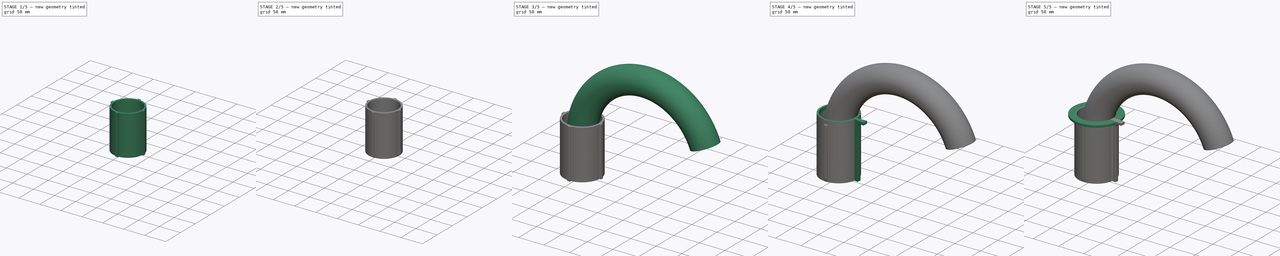
[diagram: build sequence overview — one tinted view per stage of 5, left to right]
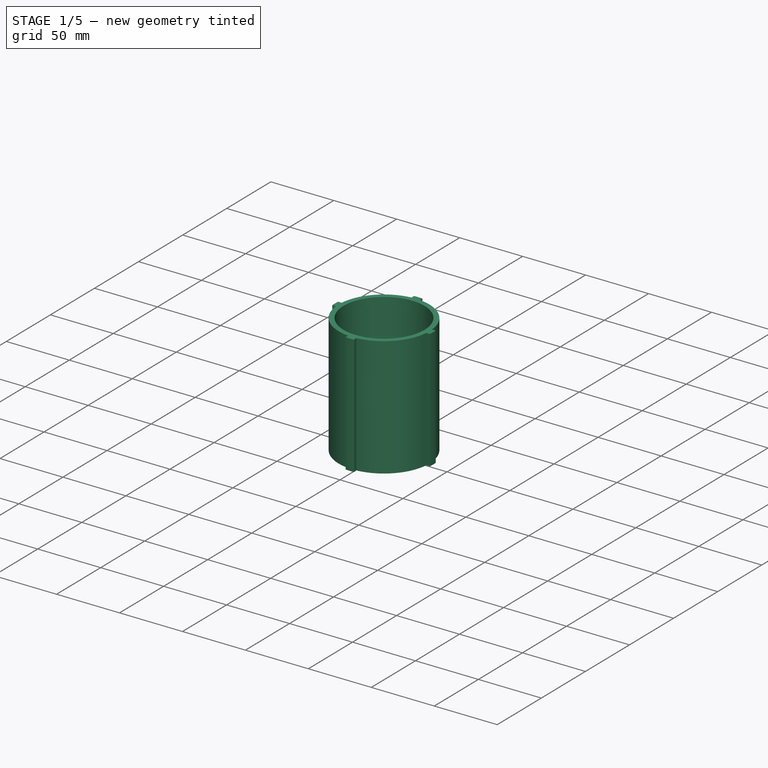
[diagram: stage 1 of 5 — iso view after this stage's code; geometry added in this stage tinted green]
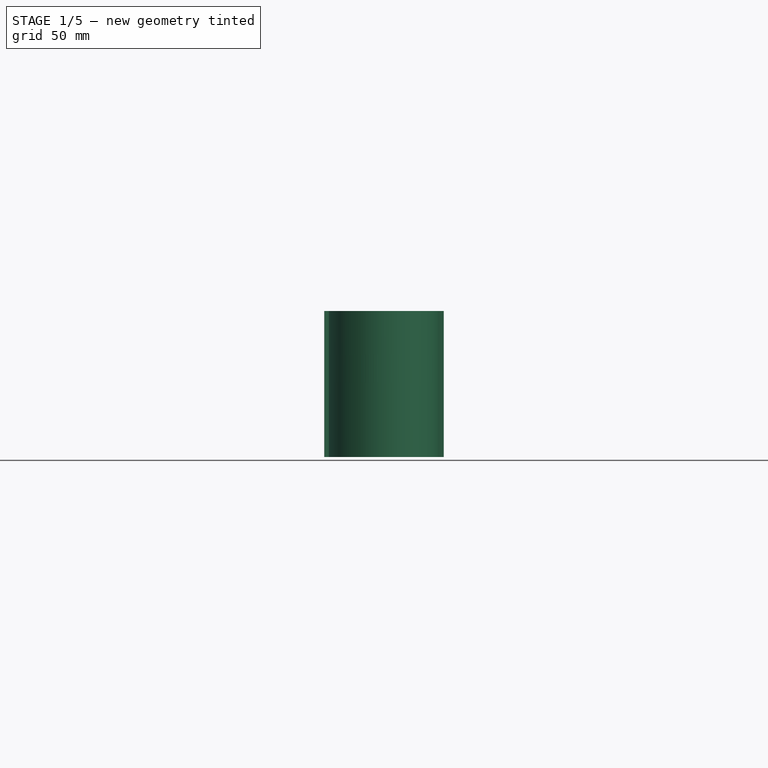
[diagram: stage 1 of 5 — front view after this stage's code; geometry added in this stage tinted green]
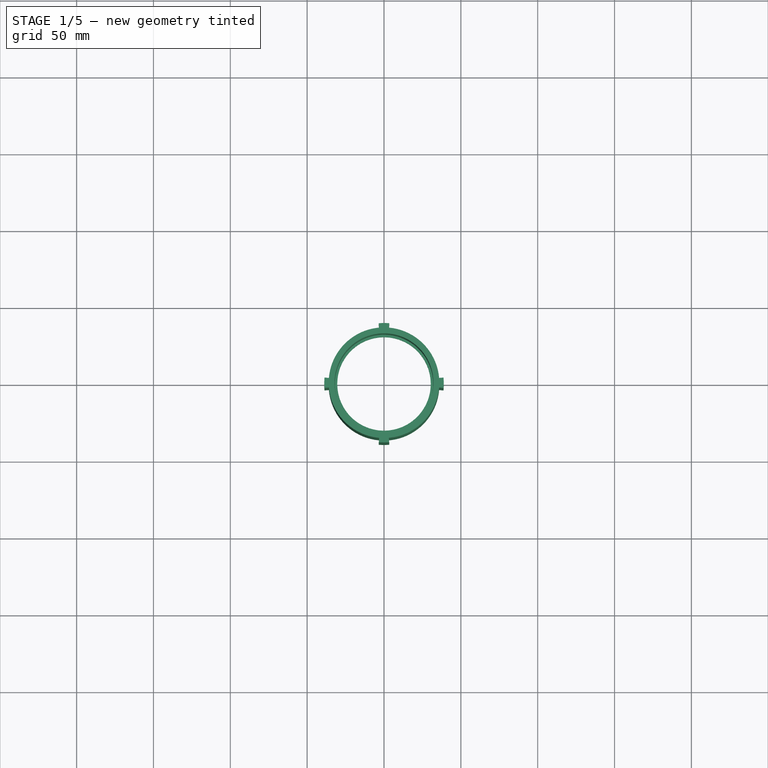
[diagram: stage 1 of 5 — top view after this stage's code; geometry added in this stage tinted green]
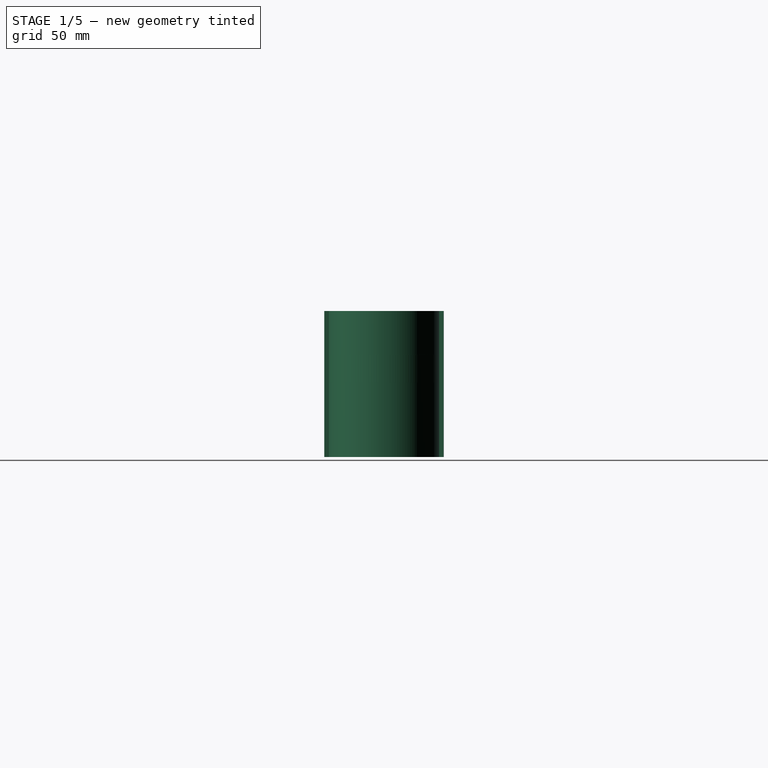
[diagram: stage 1 of 5 — right view after this stage's code; geometry added in this stage tinted green]
FCSTD DOCUMENT  (FreeCAD 1.0R39319 (Git))
Label: gutter-cleaner
License: All rights reserved
LicenseURL: http://en.wikipedia.org/wiki/All_rights_reserved
objects: PartDesign::Fillet×13, Sketcher::SketchObject×11, PartDesign::Revolution×7, PartDesign::Body×4, PartDesign::PolarPattern×2, PartDesign::Plane×2, App::VarSet×1, PartDesign::Pad×1, PartDesign::AdditivePipe×1
note: 98 computed .brp shape members not serialized (recipe doc carries the construction recipe); baked Part::Feature solids carry a one-line shape summary decoded from their .brp

FEATURE [Sketcher::SketchObject] Sketch
  ArcFitTolerance = 1e-06
  AttachmentSupport = -> [XZ_Plane]
  FullyConstrained = true
  MakeInternals = false
  MapMode = 5
  Placement = pos=(0,0,0) rot=(1,0,0;1.5708rad)
  expr: Constraints[16] = <<VarSet>>.coupler_sleeve_height
  expr: Constraints[18] = <<VarSet>>.coupler_wall_thickness
  expr: Constraints[19] = <<VarSet>>.pc_tube_wall_thickness
  expr: Constraints[20] = <<VarSet>>.coupler_id_max / 2
  expr: Constraints[21] = <<VarSet>>.coupler_id_min / 2
  sketch-geometry (8):
    g0: LineSegment StartX=36 StartY=47.5 StartZ=0 EndX=36 EndY=-47.5 EndZ=0
    g1: LineSegment StartX=36 StartY=-47.5 StartZ=0 EndX=32.15 EndY=-47.5 EndZ=0
    g2: LineSegment StartX=32.15 StartY=-47.5 StartZ=0 EndX=32 EndY=-2.5 EndZ=0
    g3: LineSegment StartX=32 StartY=-2.5 StartZ=0 EndX=30.3998 EndY=-2.5 EndZ=0
    g4: LineSegment StartX=30.3998 StartY=-2.5 StartZ=0 EndX=30.3998 EndY=2.5 EndZ=0
    g5: LineSegment StartX=30.3998 StartY=2.5 StartZ=0 EndX=32 EndY=2.5 EndZ=0
    g6: LineSegment StartX=32 StartY=2.5 StartZ=0 EndX=32.15 EndY=47.5 EndZ=0
    g7: LineSegment StartX=32.15 StartY=47.5 StartZ=0 EndX=36 EndY=47.5 EndZ=0
  constraints (22):
    c: Vertical(g0)
    c: Coincident(g0,g1)
    c: Horizontal(g1)
    c: Coincident(g1,g2)
    c: Coincident(g2,g3)
    c: Horizontal(g3)
    c: Coincident(g3,g4)
    c: Vertical(g4)
    c: Coincident(g4,g5)
    c: Horizontal(g5)
    c: Coincident(g5,g6)
    c: Coincident(g6,g7)
    c: Coincident(g7,g0)
    c: Horizontal(g7)
    c: Symmetric(g5,g2,g-1)
    c: Symmetric(g6,g1,g-1)
    c: DistanceY(g6,g6) = 45
    c: DistanceY(g4,g4) = 5
    c: Distance(g5,g0) = 4
    c: DistanceX(g4,g5) = 1.6002
    c: DistanceX(g-2,g6) = 32.15
    c: DistanceX(g-1,g5) = 32
FEATURE [App::VarSet] VarSet
  coupler_id_max = 64.3
  coupler_id_min = 64
  coupler_sleeve_height = 45
  coupler_wall_thickness = 4
  nozzle_id = 45
  nozzle_wall_thickness = 3
  pc_tube_fit_max = 0.8
  pc_tube_fit_min = 0.5
  pc_tube_od = 63.5
  pc_tube_wall_thickness = 1.6002
  shop_vac_socket_diameter = 45
  expr: coupler_id_max = pc_tube_od + pc_tube_fit_max
  expr: coupler_id_min = pc_tube_od + pc_tube_fit_min
FEATURE [PartDesign::Revolution] Revolution
  Angle = 360
  Angle2 = 60
  Axis = (0,2e-16,1)
  Base = (0,0,0)
  Placement = pos=(0,0,0) rot=(1,0,0;1.5708rad)
  Profile = -> Sketch
  ReferenceAxis = -> Sketch [V_Axis]
  Refine = true
  Reversed = true
  Suppressed = false
  Type = 0
FEATURE [PartDesign::Body] Body001  label="shop-vac-adapter"
  AllowCompound = false
  Group = -> [Sketch001,Revolution001,Sketch002,Revolution002,Sketch003,Revolution003,Fillet002,Fillet003,Fillet004,Fillet005]
  Origin = -> Origin001
  Tip = -> Fillet005
FEATURE [Sketcher::SketchObject] Sketch004
  ArcFitTolerance = 1e-06
  AttachmentOffset = pos=(0,0,0) rot=(0,1,0;0.087266rad)
  AttachmentSupport = -> [XZ_Plane]
  ExternalGeometry = -> [Sketch]
  FullyConstrained = true
  MakeInternals = false
  MapMode = 5
  Placement = pos=(0,0,0) rot=(0.998099,0.043578,0.043578;1.5727rad)
  sketch-geometry (4):
    g0: LineSegment StartX=35.863 StartY=47.5 StartZ=0 EndX=38.863 EndY=47.5 EndZ=0
    g1: LineSegment StartX=38.863 StartY=47.5 StartZ=0 EndX=38.863 EndY=-47.5 EndZ=0
    g2: LineSegment StartX=38.863 StartY=-47.5 StartZ=0 EndX=35.863 EndY=-47.5 EndZ=0
    g3: LineSegment StartX=35.863 StartY=-47.5 StartZ=0 EndX=35.863 EndY=47.5 EndZ=0
  constraints (10):
    c: Coincident(g-3,g0)
    c: Coincident(g0,g1)
    c: Vertical(g1)
    c: Coincident(g1,g2)
    c: Coincident(g2,g-3)
    c: Horizontal(g2)
    c: Coincident(g2,g3)
    c: Coincident(g3,g0)
    c: Horizontal(g0)
    c: DistanceX(g0,g0) = 3
FEATURE [PartDesign::Revolution] Revolution004
  Angle = 10
  Angle2 = 60
  Axis = (0,2e-16,1)
  Base = (0,0,0)
  BaseFeature = -> Revolution
  Placement = pos=(0,0,0) rot=(1,0,0;1.5708rad)
  Profile = -> Sketch004
  ReferenceAxis = -> Sketch004 [V_Axis]
  Refine = true
  Reversed = true
  Suppressed = false
  Type = 0
FEATURE [PartDesign::PolarPattern] PolarPattern
  Angle = 360
  Axis = -> Z_Axis
  BaseFeature = -> Revolution004
  Mode = 0
  Occurrences = 4
  Offset = 120
  Originals = -> [Revolution004]
  Placement = pos=(0,0,0) rot=(1,0,0;1.5708rad)
  Refine = true
  Suppressed = false
  TransformMode = 0
FEATURE [Sketcher::SketchObject] Sketch005
  ArcFitTolerance = 1e-06
  AttachmentSupport = -> [XY_Plane002]
  FullyConstrained = true
  MakeInternals = false
  MapMode = 5
  expr: .Constraints.inner_radius = <<VarSet>>.coupler_id_min / 2
  expr: Constraints[3] = .Constraints.inner_radius + <<VarSet>>.coupler_wall_thickness
  sketch-geometry (2):
    g0: Circle CenterX=0 CenterY=0 CenterZ=0 NormalX=0 NormalY=0 NormalZ=1 AngleXU=0 Radius=32
    g1: Circle CenterX=0 CenterY=0 CenterZ=0 NormalX=0 NormalY=0 NormalZ=1 AngleXU=0 Radius=36
  constraints (4):
    c: Coincident(g0,g-1)
    c: Radius(g0) = 32  'inner_radius'
    c: Coincident(g1,g0)
    c: Radius(g1) = 36
FEATURE [PartDesign::Pad] Pad
  Direction = (0,0,1)
  Length = 20
  Length2 = 10
  Profile = -> Sketch005
  ReferenceAxis = -> Sketch005 [N_Axis]
  Refine = true
  Suppressed = false
  Type = 0
FEATURE [PartDesign::Body] Body  label="coupler"
  AllowCompound = false
  Group = -> [Sketch,Revolution,Sketch004,Revolution004,PolarPattern,Fillet,Fillet014,Fillet015,Fillet016]
  Origin = -> Origin
  Tip = -> Fillet016
FEATURE [PartDesign::Fillet] Fillet017
  Base = -> Pad [Edge3,Edge6,Edge2,Edge5]
  BaseFeature = -> Pad
  Radius = 1
  Refine = true
  SupportTransform = false
  Suppressed = false
  UseAllEdges = false
FEATURE [PartDesign::Body] Body002  label="fit-check-ring"
  AllowCompound = false
  Group = -> [Sketch005,Pad,Fillet017]
  Origin = -> Origin002
  Tip = -> Fillet017
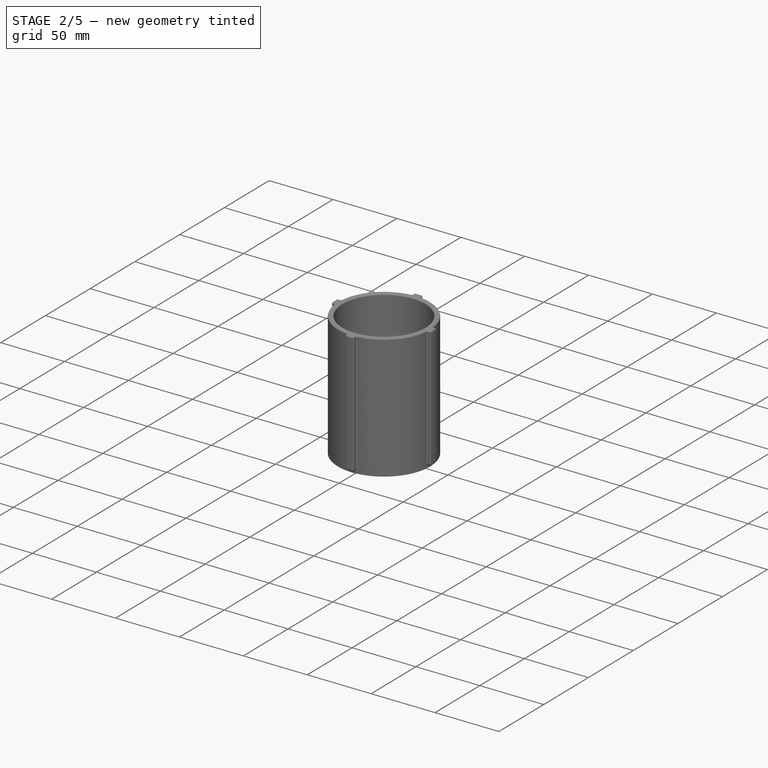
[diagram: stage 2 of 5 — iso view after this stage's code; geometry added in this stage tinted green]
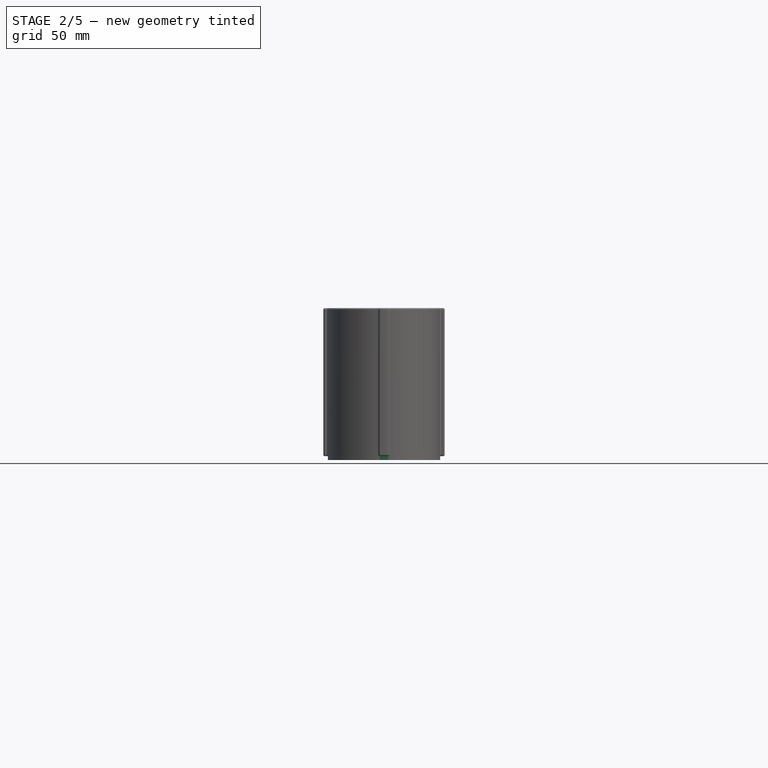
[diagram: stage 2 of 5 — front view after this stage's code; geometry added in this stage tinted green]
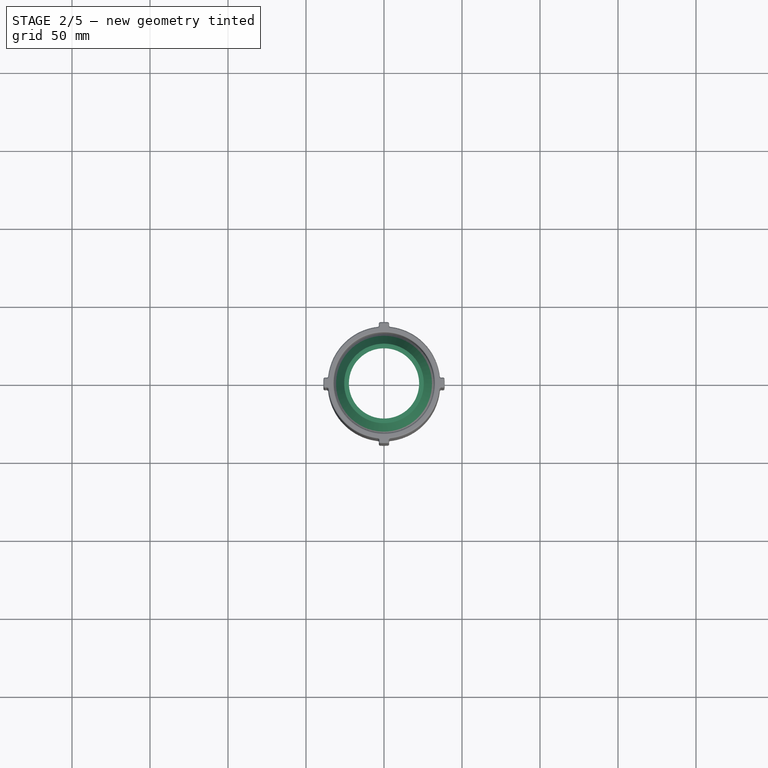
[diagram: stage 2 of 5 — top view after this stage's code; geometry added in this stage tinted green]
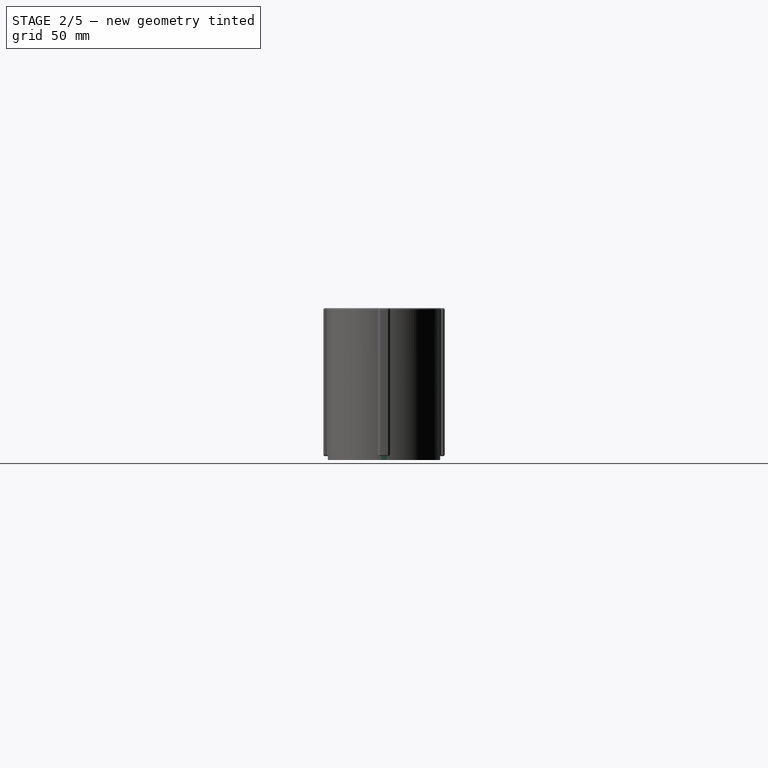
[diagram: stage 2 of 5 — right view after this stage's code; geometry added in this stage tinted green]
FEATURE [Sketcher::SketchObject] Sketch009  label="sketch_nozzle_coupler_profile"
  ArcFitTolerance = 1e-06
  AttachmentSupport = -> [XZ_Plane004]
  FullyConstrained = true
  MakeInternals = false
  MapMode = 5
  Placement = pos=(0,0,0) rot=(1,0,0;1.5708rad)
  expr: Constraints[10] = <<VarSet>>.coupler_sleeve_height
  expr: Constraints[17] = <<VarSet>>.nozzle_wall_thickness
  expr: Constraints[18] = <<VarSet>>.nozzle_id / 2
  expr: Constraints[21] = <<VarSet>>.coupler_wall_thickness
  expr: Constraints[22] = <<VarSet>>.coupler_id_min / 2
  expr: Constraints[23] = <<VarSet>>.coupler_id_max / 2
  expr: Constraints[9] = <<VarSet>>.pc_tube_wall_thickness
  sketch-geometry (8):
    g0: LineSegment StartX=36 StartY=0 StartZ=0 EndX=36 EndY=-50 EndZ=0
    g1: LineSegment StartX=36 StartY=-50 StartZ=0 EndX=32.15 EndY=-50 EndZ=0
    g2: LineSegment StartX=32.15 StartY=-50 StartZ=0 EndX=32 EndY=-5 EndZ=0
    g3: LineSegment StartX=32 StartY=-5 StartZ=0 EndX=30.3998 EndY=-5 EndZ=0
    g4: LineSegment StartX=30.3998 StartY=-5 StartZ=0 EndX=30.3998 EndY=0 EndZ=0
    g5: LineSegment StartX=22.5 StartY=20 StartZ=0 EndX=30.3998 EndY=0 EndZ=0
    g6: LineSegment StartX=22.5 StartY=20 StartZ=0 EndX=25.5 EndY=20 EndZ=0
    g7: LineSegment StartX=25.5 StartY=20 StartZ=0 EndX=36 EndY=0 EndZ=0
  constraints (24):
    c: Vertical(g0)
    c: Coincident(g0,g1)
    c: Horizontal(g1)
    c: Coincident(g1,g2)
    c: Coincident(g2,g3)
    c: Horizontal(g3)
    c: Coincident(g3,g4)
    c: Vertical(g4)
    c: Distance(g4,g4) = 5
    c: Distance(g3,g3) = 1.6002
    c: DistanceY(g2,g2) = 45
    c: PointOnObject(g4,g-1)
    c: Coincident(g5,g4)
    c: Coincident(g6,g5)
    c: Horizontal(g6)
    c: Coincident(g7,g6)
    c: Coincident(g7,g0)
    c: DistanceX(g6,g6) = 3
    c: DistanceX(g-1,g5) = 22.5
    c: DistanceY(g-1,g5) = 20  'taper_distance'
    c: PointOnObject(g0,g-1)
    c: Distance(g2,g0) = 4
    c: DistanceX(g-1,g2) = 32
    c: DistanceX(g-1,g1) = 32.15
FEATURE [PartDesign::Revolution] Revolution005
  Angle = 360
  Angle2 = 60
  Axis = (0,2e-16,1)
  Base = (0,0,0)
  Placement = pos=(0,0,0) rot=(1,0,0;1.5708rad)
  Profile = -> Sketch009
  ReferenceAxis = -> Sketch009 [V_Axis]
  Refine = true
  Reversed = true
  Suppressed = false
  Type = 0
FEATURE [PartDesign::Body] Body004  label="nozzle"
  AllowCompound = false
  Group = -> [Sketch009,Revolution005,Sketch010,Revolution006,PolarPattern001,Sketch011,Sketch012,DatumPlane001,Sketch013,DatumPlane,AdditivePipe,Fillet010,Fillet011,Fillet012,Fillet013]
  Origin = -> Origin004
  Tip = -> Fillet013
FEATURE [PartDesign::Fillet] Fillet  label="coupler-fillet-inner-ring"
  Base = -> PolarPattern [Edge50]
  BaseFeature = -> PolarPattern
  Placement = pos=(0,0,0) rot=(1,0,0;1.5708rad)
  Radius = 1.5002
  Refine = true
  SupportTransform = false
  Suppressed = false
  UseAllEdges = false
  expr: Radius = <<VarSet>>.pc_tube_wall_thickness - 0.1 mm
FEATURE [PartDesign::Fillet] Fillet014  label="coupler-fillet-top-bottom-inner"
  Base = -> Fillet [Edge3,Edge57]
  BaseFeature = -> Fillet
  Placement = pos=(0,0,0) rot=(1,0,0;1.5708rad)
  Radius = 1
  Refine = true
  SupportTransform = false
  Suppressed = false
  UseAllEdges = false
FEATURE [PartDesign::Fillet] Fillet015  label="coupler-fillet-ridges"
  Base = -> Fillet014 [Edge34,Edge33,Edge30,Edge28,Edge25,Edge26,Edge54,Edge52,Edge50,Edge49,Edge46,Edge44,Edge42,Edge41,Edge38,Edge36]
  BaseFeature = -> Fillet014
  Placement = pos=(0,0,0) rot=(1,0,0;1.5708rad)
  Radius = 1
  Refine = true
  SupportTransform = false
  Suppressed = false
  UseAllEdges = false
FEATURE [PartDesign::Fillet] Fillet016  label="coupler-fillet-top-bottom-outer"
  Base = -> Fillet015 [Edge76,Edge21]
  BaseFeature = -> Fillet015
  Placement = pos=(0,0,0) rot=(1,0,0;1.5708rad)
  Radius = 1
  Refine = true
  SupportTransform = false
  Suppressed = false
  UseAllEdges = false
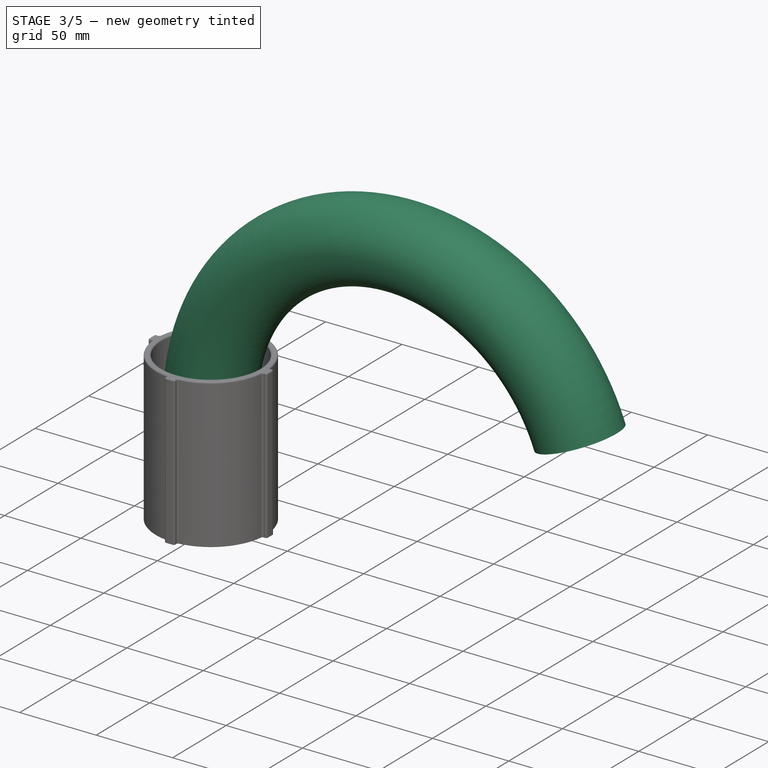
[diagram: stage 3 of 5 — iso view after this stage's code; geometry added in this stage tinted green]
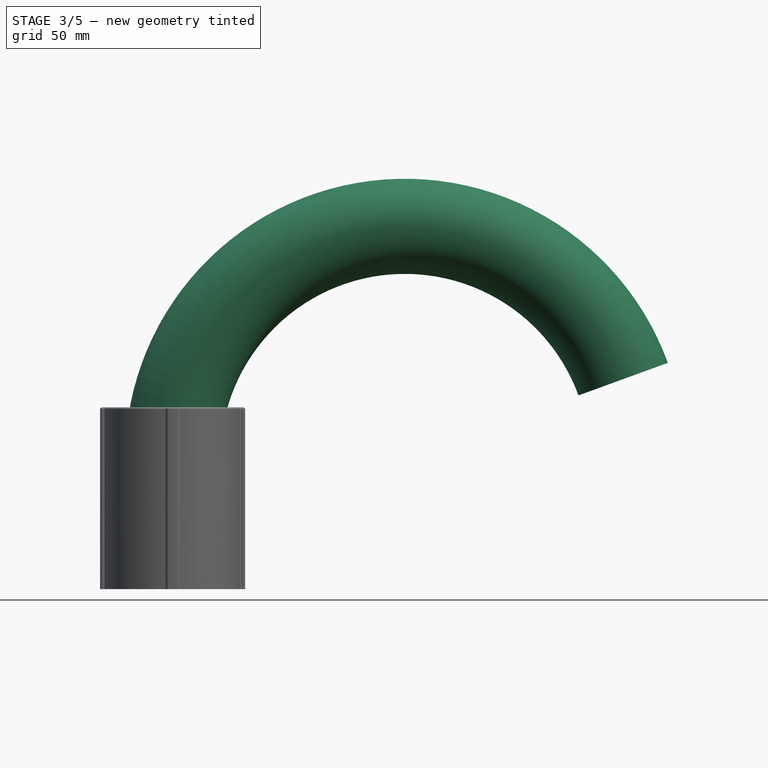
[diagram: stage 3 of 5 — front view after this stage's code; geometry added in this stage tinted green]
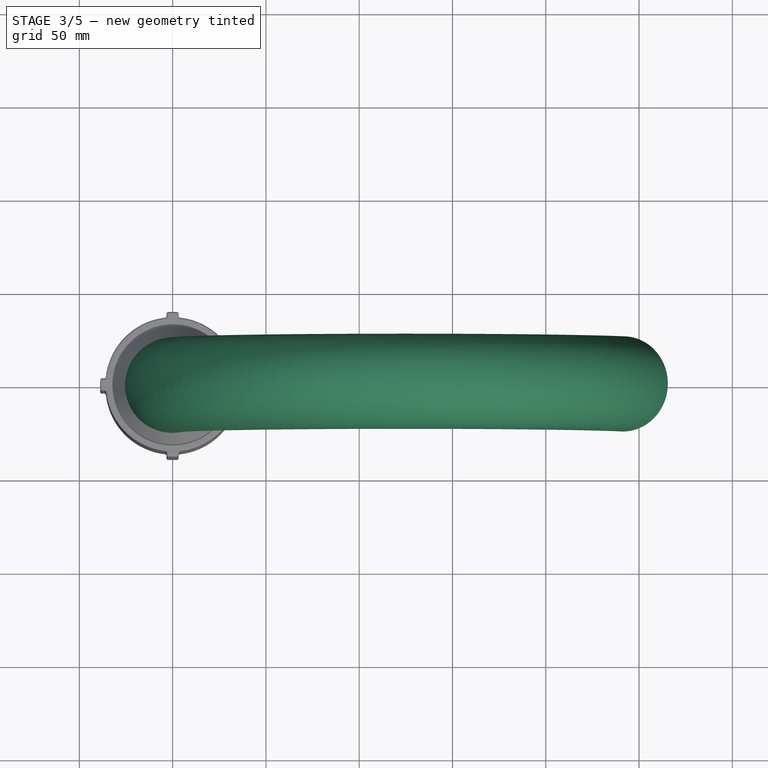
[diagram: stage 3 of 5 — top view after this stage's code; geometry added in this stage tinted green]
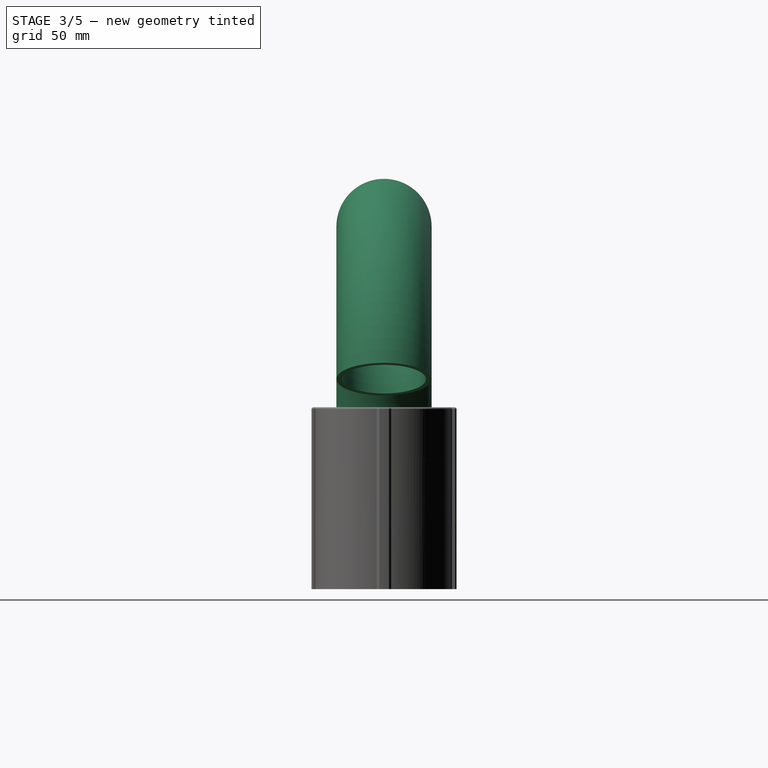
[diagram: stage 3 of 5 — right view after this stage's code; geometry added in this stage tinted green]
FEATURE [Sketcher::SketchObject] Sketch010
  ArcFitTolerance = 1e-06
  AttachmentOffset = pos=(0,0,0) rot=(0,1,0;0.087266rad)
  AttachmentSupport = -> [XZ_Plane004]
  ExternalGeometry = -> [Sketch009]
  FullyConstrained = true
  MakeInternals = false
  MapMode = 5
  Placement = pos=(0,0,0) rot=(0.998099,0.043578,0.043578;1.5727rad)
  sketch-geometry (4):
    g0: LineSegment StartX=35.863 StartY=0 StartZ=0 EndX=38.863 EndY=-3 EndZ=0
    g1: LineSegment StartX=38.863 StartY=-3 StartZ=0 EndX=38.863 EndY=-50 EndZ=0
    g2: LineSegment StartX=38.863 StartY=-50 StartZ=0 EndX=35.863 EndY=-50 EndZ=0
    g3: LineSegment StartX=35.863 StartY=-50 StartZ=0 EndX=35.863 EndY=0 EndZ=0
  constraints (10):
    c: Coincident(g-3,g0)
    c: Coincident(g0,g1)
    c: Vertical(g1)
    c: Coincident(g1,g2)
    c: Coincident(g2,g-3)
    c: Horizontal(g2)
    c: Coincident(g2,g3)
    c: Coincident(g3,g0)
    c: DistanceX(g0,g0) = 3
    c: Angle(g3,g0) = 0.785398
FEATURE [PartDesign::Revolution] Revolution006
  Angle = 10
  Angle2 = 60
  Axis = (0,2e-16,1)
  Base = (0,0,0)
  BaseFeature = -> Revolution005
  Placement = pos=(0,0,0) rot=(1,0,0;1.5708rad)
  Profile = -> Sketch010
  ReferenceAxis = -> Sketch010 [V_Axis]
  Refine = true
  Reversed = true
  Suppressed = false
  Type = 0
FEATURE [PartDesign::PolarPattern] PolarPattern001
  Angle = 360
  Axis = -> Z_Axis004
  BaseFeature = -> Revolution006
  Mode = 0
  Occurrences = 4
  Offset = 120
  Originals = -> [Revolution006]
  Placement = pos=(0,0,0) rot=(1,0,0;1.5708rad)
  Refine = true
  Suppressed = false
  TransformMode = 0
FEATURE [PartDesign::Plane] DatumPlane
  AttachmentOffset = pos=(0,0,20) rot=(0,0,1;0rad)
  AttachmentSupport = -> [XY_Plane004]
  Length = 334.765
  MapMode = 5
  Placement = pos=(0,0,20) rot=(0,0,1;0rad)
  ResizeMode = 0
  Width = 108.451
  expr: .AttachmentOffset.Base.z = <<sketch_nozzle_coupler_profile>>.Constraints.taper_distance
FEATURE [Sketcher::SketchObject] Sketch011  label="sketch_nozzle_base"
  ArcFitTolerance = 1e-06
  AttachmentSupport = -> [DatumPlane]
  ExternalGeometry = -> [Sketch009]
  FullyConstrained = true
  MakeInternals = false
  MapMode = 5
  Placement = pos=(0,0,20) rot=(0,0,1;0rad)
  sketch-geometry (2):
    g0: Circle CenterX=0 CenterY=0 CenterZ=0 NormalX=0 NormalY=0 NormalZ=1 AngleXU=0 Radius=22.5
    g1: Circle CenterX=0 CenterY=0 CenterZ=0 NormalX=0 NormalY=0 NormalZ=1 AngleXU=0 Radius=25.5
  constraints (4):
    c: Coincident(g0,g-1)
    c: Coincident(g1,g0)
    c: PointOnObject(g-3,g0)
    c: PointOnObject(g-3,g1)
FEATURE [Sketcher::SketchObject] Sketch012  label="sketch_nozzle_path"
  ArcFitTolerance = 1e-06
  AttachmentSupport = -> [XZ_Plane004]
  ExternalGeometry = -> [Sketch011]
  FullyConstrained = true
  MakeInternals = false
  MapMode = 5
  Placement = pos=(0,0,0) rot=(1,0,0;1.5708rad)
  sketch-geometry (1):
    g0: ArcOfCircle CenterX=124.5 CenterY=20 CenterZ=0 NormalX=0 NormalY=0 NormalZ=1 AngleXU=0 Radius=150 StartAngle=0.349066 EndAngle=3.14159
  constraints (4):
    c: Coincident(g0,g-3)
    c: Angle(g0) = 2.79253
    c: Diameter(g0) = 300
    c: DistanceY(g0,g0) = 0
FEATURE [PartDesign::Plane] DatumPlane001
  AttachmentSupport = -> [Sketch012]
  Length = 111.205
  MapMode = 7
  Placement = pos=(265.454,1.58e-14,71.303) rot=(0.701674,0.701674,0.123724;2.8954rad)
  ResizeMode = 0
  Width = 394.413
FEATURE [Sketcher::SketchObject] Sketch013  label="sketch_nozzle_tip"
  ArcFitTolerance = 1e-06
  AttachmentSupport = -> [DatumPlane001]
  FullyConstrained = true
  MakeInternals = false
  MapMode = 5
  Placement = pos=(265.454,1.58e-14,71.303) rot=(0.701674,0.701674,0.123724;2.8954rad)
  expr: .Constraints.nozzle_tip_id = <<VarSet>>.nozzle_id
  expr: Constraints[1] = <<VarSet>>.nozzle_id + <<VarSet>>.nozzle_wall_thickness * 2
  sketch-geometry (2):
    g0: Circle CenterX=0 CenterY=-25.5 CenterZ=0 NormalX=0 NormalY=0 NormalZ=1 AngleXU=0 Radius=22.5
    g1: Circle CenterX=0 CenterY=-25.5 CenterZ=0 NormalX=0 NormalY=0 NormalZ=1 AngleXU=0 Radius=25.5
  constraints (5):
    c: Diameter(g0) = 45  'nozzle_tip_id'
    c: Diameter(g1) = 51
    c: PointOnObject(g0,g-2)
    c: Coincident(g1,g0)
    c: PointOnObject(g-1,g1)
FEATURE [PartDesign::AdditivePipe] AdditivePipe
  AuxilleryCurvelinear = true
  AuxillerySpineTangent = false
  BaseFeature = -> PolarPattern001
  Binormal = (0,0,0)
  Mode = 0
  Placement = pos=(0,0,0) rot=(1,0,0;1.5708rad)
  Profile = -> Sketch011
  Refine = true
  Sections = -> [Sketch013]
  Spine = -> Sketch012
  SpineTangent = false
  Suppressed = false
  Transformation = 1
  Transition = 0
FEATURE [PartDesign::Fillet] Fillet010  label="nozzle-fillet-ridges"
  Base = -> AdditivePipe [Edge21,Edge22,Edge53,Edge36,Edge35,Edge51,Edge48,Edge33,Edge32,Edge46,Edge43,Edge30,Edge29,Edge41,Edge38,Edge27]
  BaseFeature = -> AdditivePipe
  Placement = pos=(0,0,0) rot=(1,0,0;1.5708rad)
  Radius = 1
  Refine = true
  SupportTransform = false
  Suppressed = false
  UseAllEdges = false
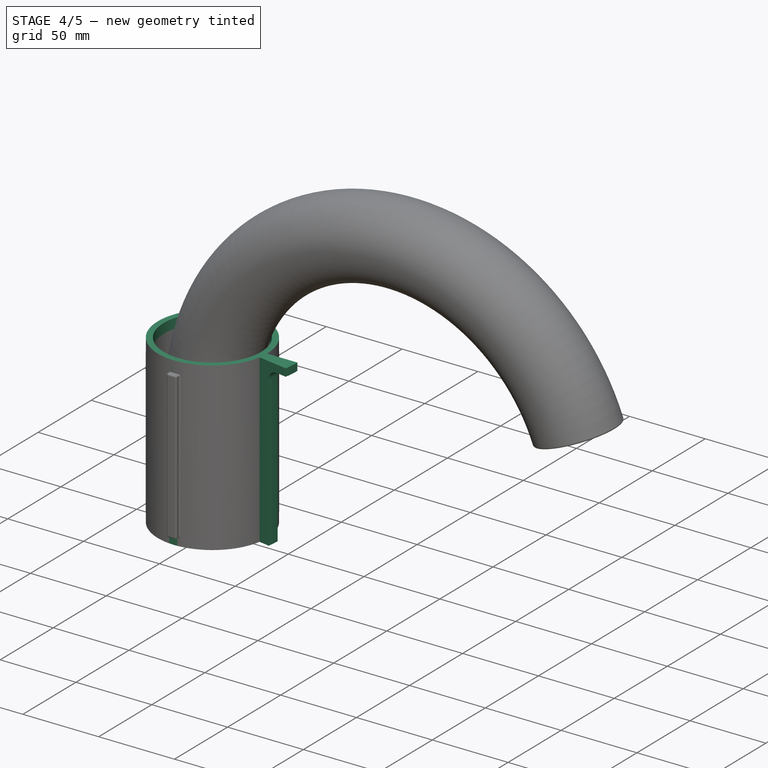
[diagram: stage 4 of 5 — iso view after this stage's code; geometry added in this stage tinted green]
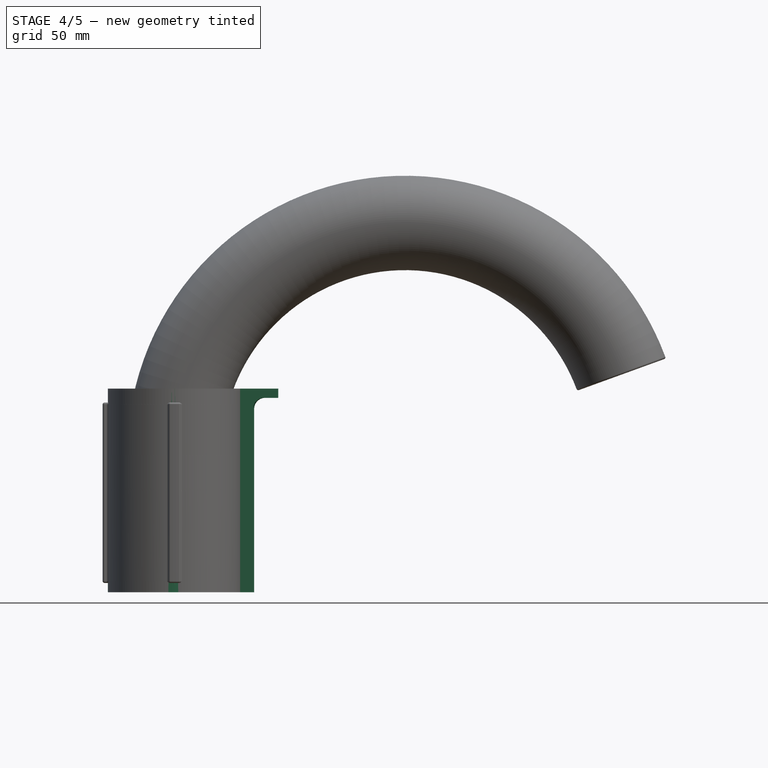
[diagram: stage 4 of 5 — front view after this stage's code; geometry added in this stage tinted green]
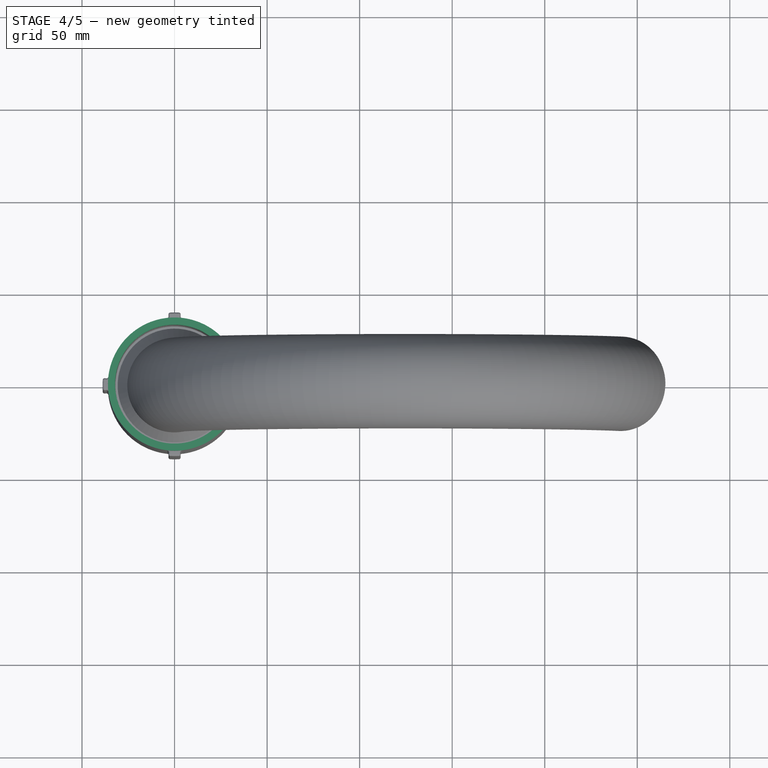
[diagram: stage 4 of 5 — top view after this stage's code; geometry added in this stage tinted green]
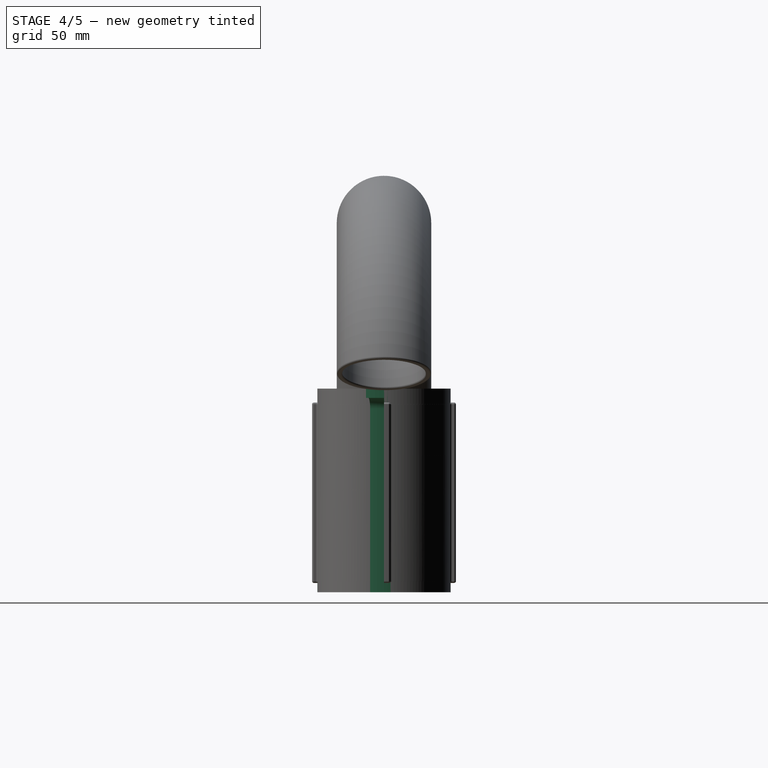
[diagram: stage 4 of 5 — right view after this stage's code; geometry added in this stage tinted green]
FEATURE [Sketcher::SketchObject] Sketch001
  ArcFitTolerance = 1e-06
  AttachmentSupport = -> [XZ_Plane001]
  FullyConstrained = true
  MakeInternals = false
  MapMode = 5
  Placement = pos=(0,0,0) rot=(1,0,0;1.5708rad)
  expr: Constraints[10] = <<VarSet>>.pc_tube_wall_thickness
  expr: Constraints[11] = <<VarSet>>.shop_vac_socket_diameter / 2
  expr: Constraints[15] = <<VarSet>>.coupler_sleeve_height
  expr: Constraints[17] = <<VarSet>>.coupler_id_max / 2
  expr: Constraints[18] = <<VarSet>>.coupler_id_min / 2
  expr: Constraints[19] = <<VarSet>>.coupler_wall_thickness
  expr: Constraints[9] = <<VarSet>>.coupler_sleeve_height
  sketch-geometry (7):
    g0: LineSegment StartX=32.15 StartY=55 StartZ=0 EndX=32 EndY=10 EndZ=0
    g1: LineSegment StartX=32 StartY=10 StartZ=0 EndX=30.3998 EndY=10 EndZ=0
    g2: LineSegment StartX=22.5 StartY=-10 StartZ=0 EndX=22.5 EndY=-55 EndZ=0
    g3: LineSegment StartX=22.5 StartY=-55 StartZ=0 EndX=36 EndY=-55 EndZ=0
    g4: LineSegment StartX=36 StartY=-55 StartZ=0 EndX=36 EndY=55 EndZ=0
    g5: LineSegment StartX=36 StartY=55 StartZ=0 EndX=32.15 EndY=55 EndZ=0
    g6: LineSegment StartX=22.5 StartY=-10 StartZ=0 EndX=30.3998 EndY=10 EndZ=0
  constraints (20):
    c: Coincident(g0,g1)
    c: Vertical(g2)
    c: Coincident(g2,g3)
    c: Coincident(g3,g4)
    c: Coincident(g4,g5)
    c: Coincident(g5,g0)
    c: Horizontal(g5)
    c: Horizontal(g3)
    c: Horizontal(g1)
    c: DistanceY(g0,g0) = 45
    c: DistanceX(g1,g1) = 1.6002
    c: DistanceX(g-1,g2) = 22.5
    c: Coincident(g6,g2)
    c: Coincident(g6,g1)
    c: Symmetric(g4,g3,g-1)
    c: DistanceY(g2,g2) = 45
    c: DistanceY(g2,g1) = 20
    c: DistanceX(g-1,g0) = 32.15
    c: DistanceX(g-1,g0) = 32
    c: Distance(g0,g4) = 4
FEATURE [PartDesign::Revolution] Revolution001
  Angle = 360
  Angle2 = 60
  Axis = (0,2e-16,1)
  Base = (0,0,0)
  Placement = pos=(0,0,0) rot=(1,0,0;1.5708rad)
  Profile = -> Sketch001
  ReferenceAxis = -> Sketch001 [V_Axis]
  Refine = true
  Reversed = true
  Suppressed = false
  Type = 0
FEATURE [Sketcher::SketchObject] Sketch002
  ArcFitTolerance = 1e-06
  AttachmentSupport = -> [XZ_Plane001]
  ExternalGeometry = -> [Sketch001]
  FullyConstrained = true
  MakeInternals = false
  MapMode = 5
  Placement = pos=(0,0,0) rot=(1,0,0;1.5708rad)
  sketch-geometry (7):
    g0: LineSegment StartX=36 StartY=55 StartZ=0 EndX=56 EndY=55 EndZ=0
    g1: LineSegment StartX=56 StartY=55 StartZ=0 EndX=56 EndY=50 EndZ=0
    g2: LineSegment StartX=56 StartY=50 StartZ=0 EndX=49 EndY=50 EndZ=0
    g3: ArcOfCircle CenterX=49 CenterY=44 CenterZ=0 NormalX=0 NormalY=0 NormalZ=1 AngleXU=0 Radius=6 StartAngle=1.5708 EndAngle=3.14159
    g4: LineSegment StartX=43 StartY=44 StartZ=0 EndX=43 EndY=-55 EndZ=0
    g5: LineSegment StartX=43 StartY=-55 StartZ=0 EndX=36 EndY=-55 EndZ=0
    g6: LineSegment StartX=36 StartY=-55 StartZ=0 EndX=36 EndY=55 EndZ=0
  constraints (18):
    c: Coincident(g-3,g0)
    c: Horizontal(g0)
    c: Coincident(g0,g1)
    c: Vertical(g1)
    c: Coincident(g1,g2)
    c: Horizontal(g2)
    c: Tangent(g2,g3) = -1.5708
    c: Vertical(g4)
    c: Coincident(g5,g-3)
    c: Horizontal(g5)
    c: Coincident(g5,g6)
    c: Coincident(g6,g0)
    c: Tangent(g3,g4) = -1.5708
    c: Coincident(g5,g4)
    c: DistanceY(g1,g1) = 5
    c: DistanceX(g0,g0) = 20
    c: Radius(g3) = 6
    c: Distance(g5,g5) = 7
FEATURE [PartDesign::Revolution] Revolution002
  Angle = 10
  Angle2 = 60
  Axis = (0,2e-16,1)
  Base = (0,0,0)
  BaseFeature = -> Revolution001
  Placement = pos=(0,0,0) rot=(1,0,0;1.5708rad)
  Profile = -> Sketch002
  ReferenceAxis = -> Sketch002 [V_Axis]
  Refine = true
  Reversed = true
  Suppressed = false
  Type = 0
FEATURE [PartDesign::Fillet] Fillet011  label="nozzle-fillet-bottom-outside"
  Base = -> Fillet010 [Edge21]
  BaseFeature = -> Fillet010
  Placement = pos=(0,0,0) rot=(1,0,0;1.5708rad)
  Radius = 1
  Refine = true
  SupportTransform = false
  Suppressed = false
  UseAllEdges = false
FEATURE [PartDesign::Fillet] Fillet012  label="nozzle-fillet-bottom-inside"
  Base = -> Fillet011 [Edge25]
  BaseFeature = -> Fillet011
  Placement = pos=(0,0,0) rot=(1,0,0;1.5708rad)
  Radius = 1
  Refine = true
  SupportTransform = false
  Suppressed = false
  UseAllEdges = false
FEATURE [PartDesign::Fillet] Fillet013  label="nozzle-fillet-tip"
  Base = -> Fillet012 [Edge186,Edge191,Edge184,Edge190]
  BaseFeature = -> Fillet012
  Placement = pos=(0,0,0) rot=(1,0,0;1.5708rad)
  Radius = 1
  Refine = true
  SupportTransform = false
  Suppressed = false
  UseAllEdges = false
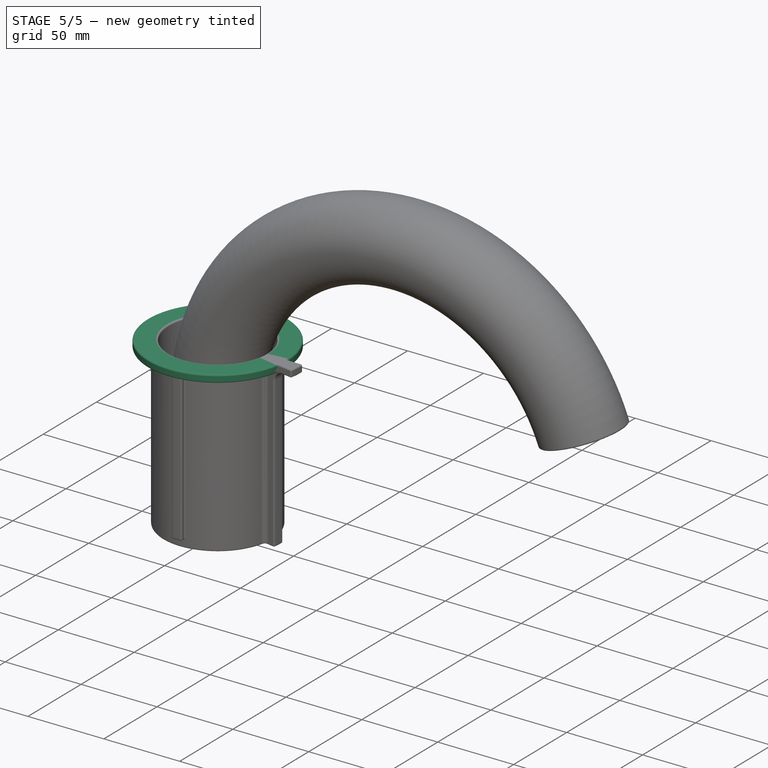
[diagram: stage 5 of 5 — iso view after this stage's code; geometry added in this stage tinted green]
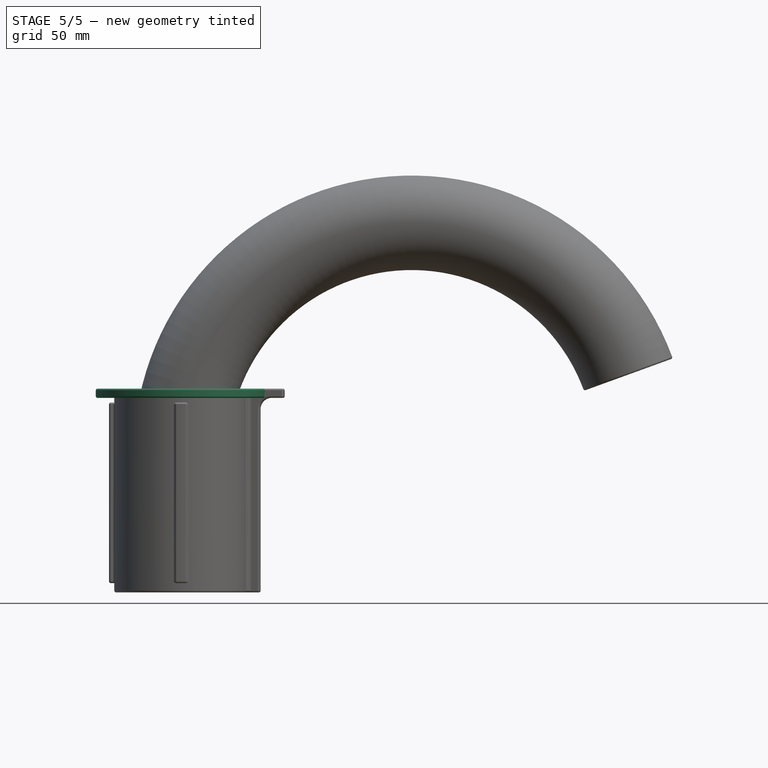
[diagram: stage 5 of 5 — front view after this stage's code; geometry added in this stage tinted green]
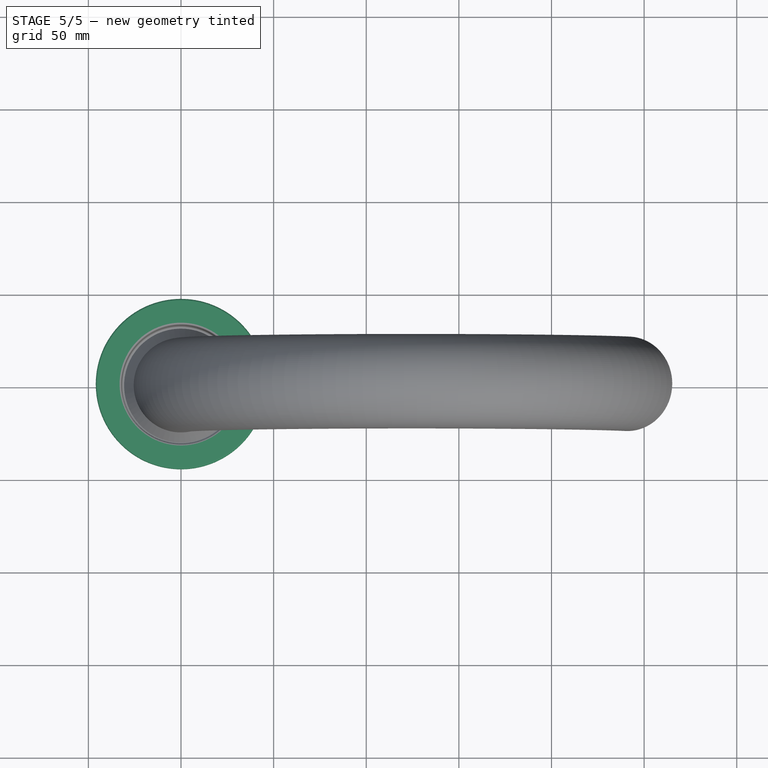
[diagram: stage 5 of 5 — top view after this stage's code; geometry added in this stage tinted green]
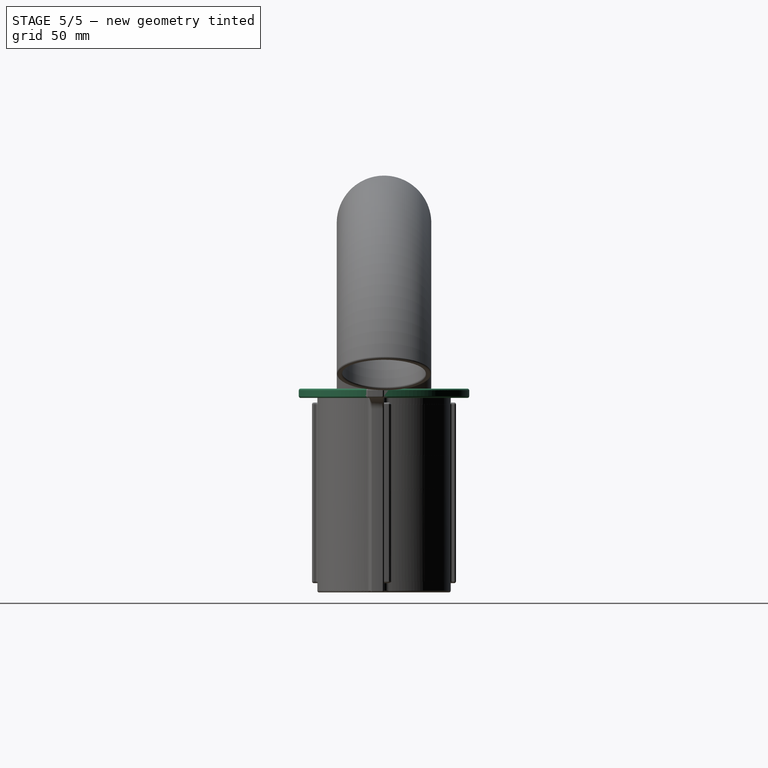
[diagram: stage 5 of 5 — right view after this stage's code; geometry added in this stage tinted green]
FEATURE [Sketcher::SketchObject] Sketch003
  ArcFitTolerance = 1e-06
  AttachmentSupport = -> [XZ_Plane001]
  ExternalGeometry = -> [Sketch001,Sketch002]
  FullyConstrained = true
  MakeInternals = false
  MapMode = 5
  Placement = pos=(0,0,0) rot=(1,0,0;1.5708rad)
  sketch-geometry (6):
    g0: LineSegment StartX=36 StartY=55 StartZ=0 EndX=46 EndY=55 EndZ=0
    g1: LineSegment StartX=46 StartY=55 StartZ=0 EndX=46 EndY=51 EndZ=0
    g2: LineSegment StartX=45 StartY=50 StartZ=0 EndX=36 EndY=50 EndZ=0
    g3: LineSegment StartX=36 StartY=50 StartZ=0 EndX=36 EndY=55 EndZ=0
    g4: ArcOfCircle CenterX=45 CenterY=51 CenterZ=0 NormalX=0 NormalY=0 NormalZ=1 AngleXU=0 Radius=1 StartAngle=4.71239 EndAngle=6.28319
    g5: GeomPoint [constr] X=46 Y=50 Z=0
  constraints (15):
    c: Coincident(g-4,g0)
    c: PointOnObject(g0,g-4)
    c: Coincident(g0,g1)
    c: PointOnObject(g2,g-3)
    c: Horizontal(g2)
    c: Coincident(g2,g3)
    c: Coincident(g3,g0)
    c: Vertical(g1)
    c: DistanceX(g0,g0) = 10
    c: DistanceY(g5,g1) = 5
    c: PointOnObject(g5,g1)
    c: PointOnObject(g5,g2)
    c: Tangent(g1,g4) = 1.5708
    c: Tangent(g2,g4) = 1.5708
    c: Radius(g4) = 1
FEATURE [PartDesign::Revolution] Revolution003
  Angle = 360
  Angle2 = 60
  Axis = (0,2e-16,1)
  Base = (0,0,0)
  BaseFeature = -> Revolution002
  Placement = pos=(0,0,0) rot=(1,0,0;1.5708rad)
  Profile = -> Sketch003
  ReferenceAxis = -> Sketch003 [V_Axis]
  Refine = true
  Reversed = true
  Suppressed = false
  Type = 0
FEATURE [PartDesign::Fillet] Fillet002
  Base = -> Revolution003 [Edge10,Edge22,Edge12,Edge16,Edge15]
  BaseFeature = -> Revolution003
  Placement = pos=(0,0,0) rot=(1,0,0;1.5708rad)
  Radius = 1
  Refine = true
  SupportTransform = false
  Suppressed = false
  UseAllEdges = false
FEATURE [PartDesign::Fillet] Fillet003
  Base = -> Fillet002 [Edge32,Edge10,Edge34,Edge29,Edge35,Edge36,Edge37,Edge15,Edge1,Edge13,Edge11,Edge12,Edge14,Edge16]
  BaseFeature = -> Fillet002
  Placement = pos=(0,0,0) rot=(1,0,0;1.5708rad)
  Radius = 1
  Refine = true
  SupportTransform = false
  Suppressed = false
  UseAllEdges = false
FEATURE [PartDesign::Fillet] Fillet004
  Base = -> Fillet003 [Edge4,Edge21]
  BaseFeature = -> Fillet003
  Placement = pos=(0,0,0) rot=(1,0,0;1.5708rad)
  Radius = 3
  Refine = true
  SupportTransform = false
  Suppressed = false
  UseAllEdges = false
FEATURE [PartDesign::Fillet] Fillet005
  Base = -> Fillet004 [Edge99]
  BaseFeature = -> Fillet004
  Placement = pos=(0,0,0) rot=(1,0,0;1.5708rad)
  Radius = 1.5902
  Refine = true
  SupportTransform = false
  Suppressed = false
  UseAllEdges = false
  expr: Radius = <<VarSet>>.pc_tube_wall_thickness - 0.01 mm
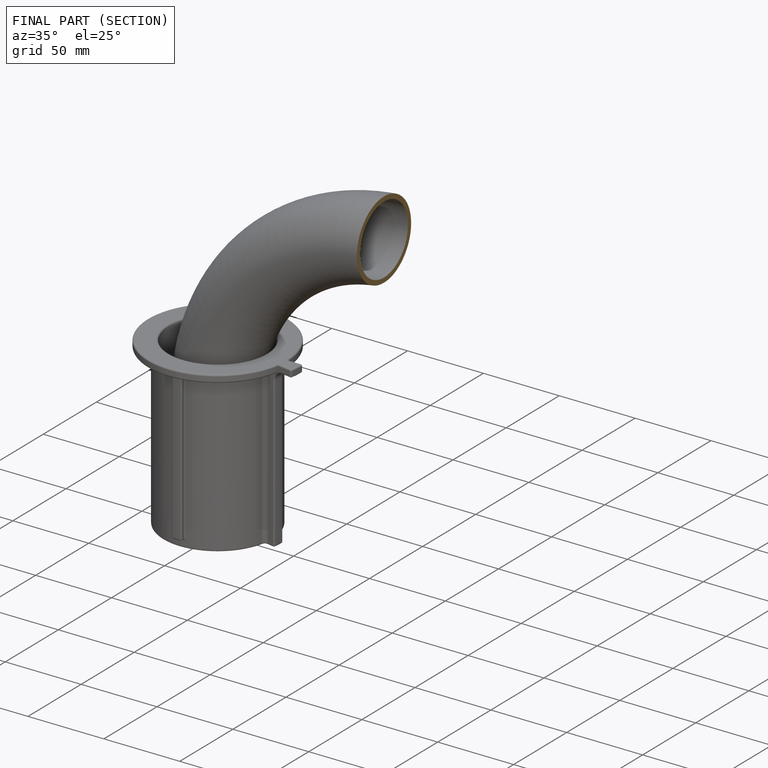
[diagram: finished part — half-section view (interior)]
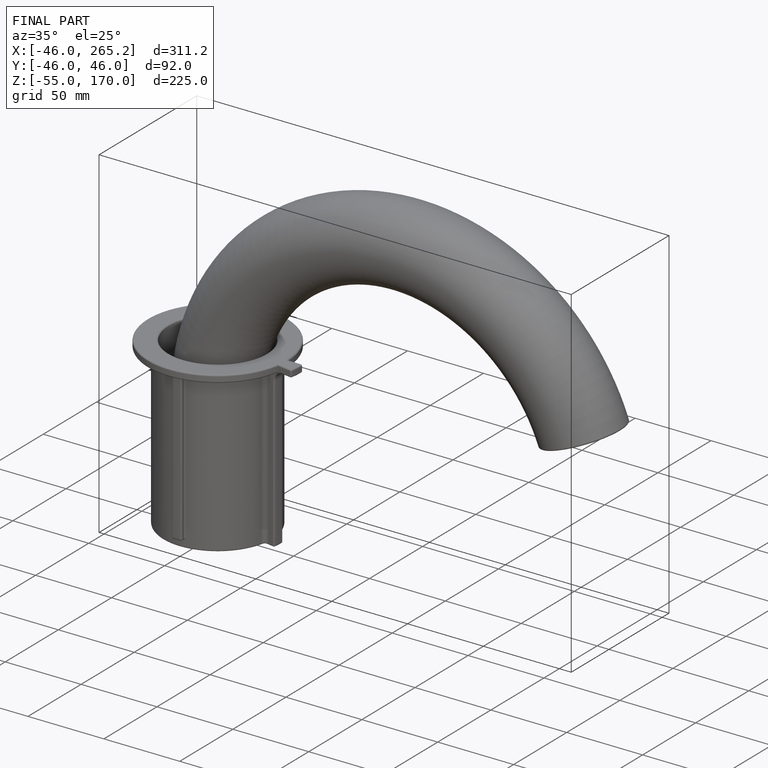
[diagram: finished part — iso view with bounding-box wireframe]
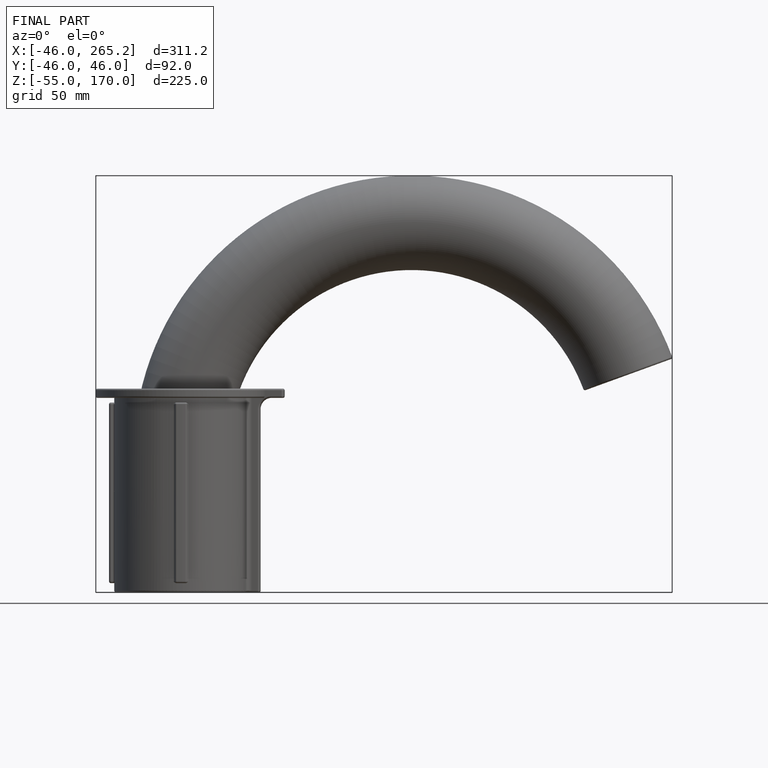
[diagram: finished part — front view with bounding-box wireframe]
